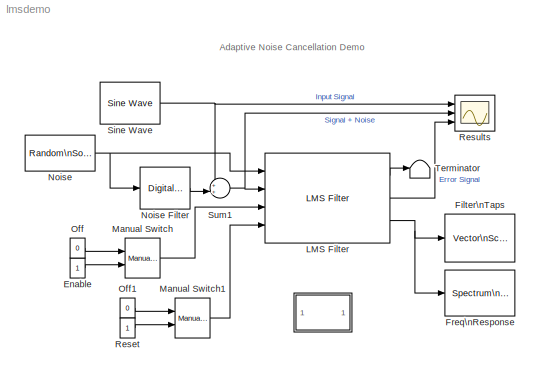
MODEL lmsdemo
KIND model
BLOCK [SubSystem]  
  MaskDisplay = disp('Info')
  MaskIconFrame = on
  MaskIconOpaque = on
  MaskIconRotate = none
  MaskIconUnits = autoscale
  MinAlgLoopOccurrences = off
  Ports = []
  PropExecContextAcrossSSBoundary = on
  RTWSystemCode = Auto
  TreatAsAtomicUnit = off
BLOCK [Constant] Enable
  OutDataTypeMode = boolean
BLOCK [Reference] Filter\nTaps  REF=dspsnks4/Vector\nScope
  AxisGrid = on
  AxisLegend = off
  AxisProperties = on
  AxisZoom = on
  DisplayProperties = off
  Domain = User-defined
  FigPos = [31 210 329 270]
  FrameNumber = on
  HorizSpan = 1
  InheritXIncr = on
  LineColors = [0 0 1]
  LineDisables = on
  LineMarkers = .
  LineProperties = off
  LineStyles = :
  Memory = off
  OpenScopeAtSimStart = on
  OpenScopeImmediately = off
  Ports = [1]
  ScopeProperties = off
  ShowPortLabels = off
  SourceBlock = dspsnks4/Vector\nScope
  SourceType = Vector Scope
  XIncr = 1
  XLabel = Samples
  XRange = [0...Fs/2]
  XUnits = Hertz
  YLabel = Filter Coefficients
  YMax = 0.6
  YMin = -0.2
  YUnits = dB
BLOCK [Reference] Freq\nResponse  REF=dspsnks4/Spectrum\nScope
  AxisGrid = on
  AxisLegend = off
  AxisProperties = on
  AxisZoom = on
  BufferSize = 128
  DisplayProperties = off
  Domain = Frequency
  FFTlength = 256
  FigPos = [372 208 378 270]
  FrameNumber = on
  HorizSpan = 1
  InheritXIncr = on
  LineColors = [0 0 1]
  LineDisables = on
  LineProperties = off
  LineStyles = -
  Memory = off
  OpenScopeAtSimStart = on
  OpenScopeImmediately = off
  Overlap = 64
  Ports = [1]
  ScopeProperties = off
  ShowPortLabels = off
  SourceBlock = dspsnks4/Spectrum\nScope
  SourceType = Spectrum Scope
  UseBuffer = off
  XIncr = 1
  XLabel = Samples
  XRange = [0...Fs/2]
  XUnits = Hertz
  YLabel = Magnitude, dB
  YMax = 0
  YMin = -60
  YUnits = dB
  inpFftLenInherit = on
  numAvg = 2
BLOCK [Reference] LMS Filter  REF=dspadpt3/LMS Filter
  Adapt = on
  Algo = Normalized LMS
  DialogController = dspDDGCreate
  DialogControllerArgs = DataTag0
  L = 32
  Ports = [4, 3]
  ShowPortLabels = off
  SourceBlock = dspadpt3/LMS Filter
  SourceType = LMS Filter
  accum2FracLength = 20
  accum2Mode = User-defined
  accumFracLength = 20
  accumMode = Same as first input
  accumWordLength = 32
  addnparflag = on
  firstCoeffFracLength = 15
  firstCoeffMode = Same word length as first input
  firstCoeffWordLength = 16
  ic = 0
  leakage = 1.0
  memoryFracLength = 15
  memoryMode = Same as first input
  memoryWordLength = 16
  mu = 0.1
  overflowMode = off
  prodOutput2FracLength = 20
  prodOutput2Mode = User-defined
  prodOutput3FracLength = 20
  prodOutput3Mode = User-defined
  prodOutput4FracLength = 20
  prodOutput4Mode = User-defined
  prodOutputFracLength = 20
  prodOutputMode = Same as first input
  prodOutputWordLength = 32
  quotientFracLength = 20
  quotientMode = User-defined
  resetflag = Either edge
  roundingMode = Floor
  secondCoeffFracLength = 15
  secondCoeffMode = User-defined
  secondCoeffWordLength = 2
  stepflag = Dialog
  weights = on
BLOCK [Reference] Manual Switch  REF=simulink/Signal\nRouting/Manual Switch
  Ports = [2, 1]
  ShowPortLabels = on
  SourceBlock = simulink/Signal\nRouting/Manual Switch
  SourceType = Manual Switch
  action = 0
  sw = 0
BLOCK [Reference] Manual Switch1  REF=simulink/Signal\nRouting/Manual Switch
  Ports = [2, 1]
  ShowPortLabels = on
  SourceBlock = simulink/Signal\nRouting/Manual Switch
  SourceType = Manual Switch
  action = 0
  sw = 1
BLOCK [Reference] Noise  REF=dspsrcs4/Random\nSource
  CltLength = 12
  DataType = Double
  Diagnostics = AllowInheritedTsInSrc
  Inherit = off
  Max = 1
  Mean = 0
  Min = 0
  NormMethod = Ziggurat
  OutComplex = Real
  Ports = [0, 1]
  RepMode = Specify seed
  SampFrame = 1
  SampMode = Discrete
  SampTime = 1
  SourceBlock = dspsrcs4/Random\nSource
  SourceType = Random Source
  SrcType = Gaussian
  Var = 1
  rawSeed = [23341]
BLOCK [Reference] Noise Filter  REF=dsparch4/Digital\nFilter Design
  Ports = [1, 1]
  ShowPortLabels = on
  SourceBlock = dsparch4/Digital\nFilter Design
  UserData = DataTag1
  UserDataPersistent = on
BLOCK [Constant] Off
  OutDataTypeMode = boolean
  Value = 0
BLOCK [Constant] Off1
  OutDataTypeMode = boolean
  Value = 0
BLOCK [Constant] Reset
  OutDataTypeMode = boolean
BLOCK [Scope] Results
  DataFormat = Array
  NumInputPorts = 3
  Ports = [3]
  SaveName = ScopeData1
  TimeRange = 128
  YMax = 2~2~2
  YMin = -2~-2~-2
BLOCK [Reference] Sine Wave  REF=dspsrcs4/Sine Wave
  Amplitude = 1
  CompMethod = Trigonometric fcn
  Frequency = 0.055
  OutComplex = Real
  Phase = 0
  Ports = [0, 1]
  ResetState = Restart at time zero
  SampleMode = Discrete
  SampleTime = 1
  SamplesPerFrame = 1
  SourceBlock = dspsrcs4/Sine Wave
  SourceType = Sine Wave
  TableSize = Speed
  additionalParams = off
  allowOverrides = on
  dataType = double
  fracBitsMode = User-defined
  numFracBits = 14
  udDataType = sfix(16)
  wordLen = 16
BLOCK [Sum] Sum1
  IconShape = round
  Inputs = ++|
  Ports = [2, 1]
BLOCK [Terminator] Terminator
ANNOTATION (root): Adaptive Noise Cancellation Demo
ANNOTATION  : Adaptive Noise Cancellation using the Least\nMean Square Algorithm\n\nThe LMS adaptive filter uses the reference signal (on\nthe \"Input\" port) and the desired signal (on the \"Desired\" port) to automatically\n match the filter response in the block labeled \"Noise filter\".\n As it converges to the correct filter, the filtered noise should\n be completely subtracted from the \"Signal + Noise\" ...<+166ch>
LINE Enable:1 -> Manual Switch:2
LINE LMS Filter:1 -> Terminator:1
LINE LMS Filter:2 -> Results:3
NET LMS Filter:3 -> Filter\nTaps:1, Freq\nResponse:1
LINE Manual Switch1:1 -> LMS Filter:4
LINE Manual Switch:1 -> LMS Filter:3
LINE Noise Filter:1 -> Sum1:2
NET Noise:1 -> LMS Filter:1, Noise Filter:1
LINE Off1:1 -> Manual Switch1:1
LINE Off:1 -> Manual Switch:1
LINE Reset:1 -> Manual Switch1:2
NET Sine Wave:1 -> Results:1, Sum1:1
NET Sum1:1 -> LMS Filter:2, Results:2
note: NET lines group one-source signal fan-out (src -> all destinations, sorted); 1:1 wires keep LINE
